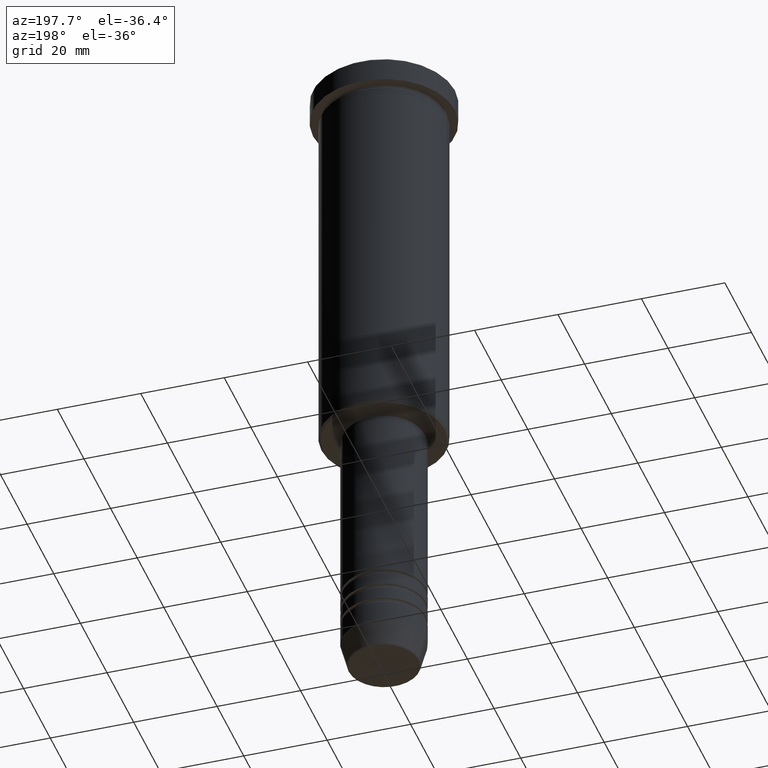
[diagram: clean part render]
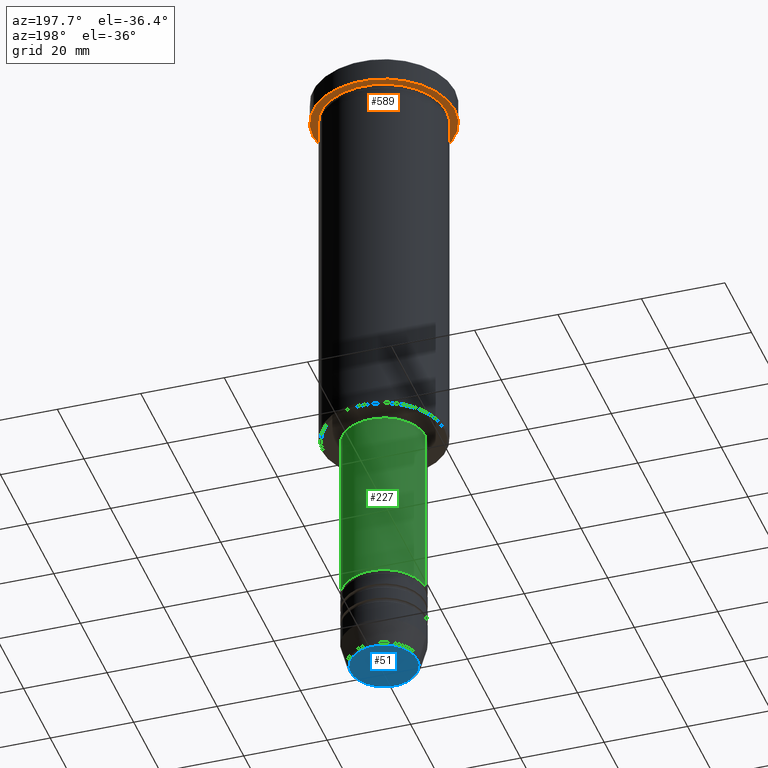
[diagram: same view with three faces highlighted in distinct colors, each labeled with its STEP entity id]
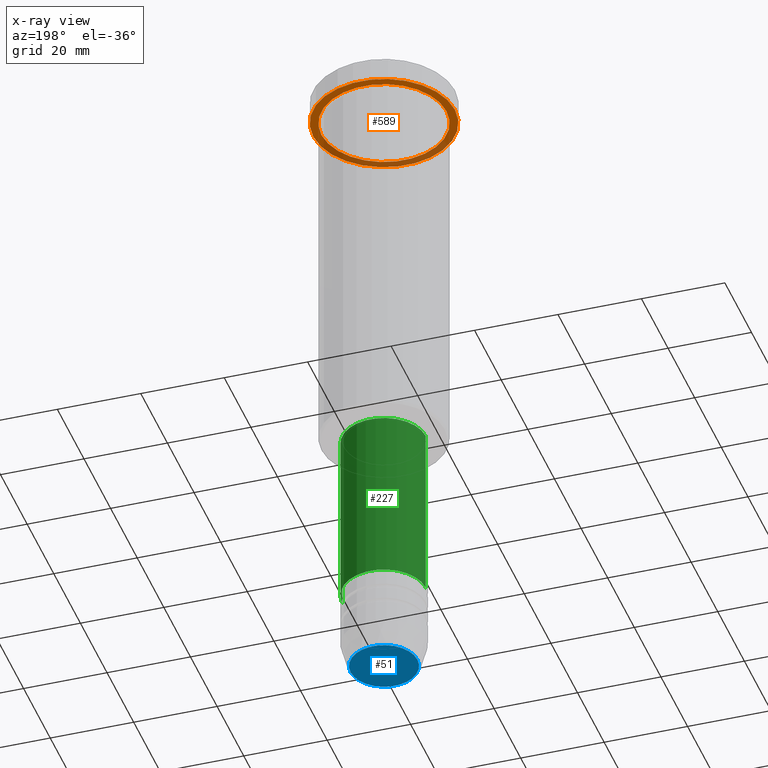
[diagram: x-ray of the same camera — body ghosted, the three highlighted faces saturated]
A machine part, auxiliary view with three faces highlighted in distinct colors.
The next image is the same camera in x-ray (body ghosted, the three faces saturated) — at least one of them is partly hidden behind the body in this view.
Their STEP definitions:

[orange] entity #589 — the highlighted planar face has unit normal (0, 0, -1).
#25 = CIRCLE ( 'NONE', #585, 15.00000000000000000 ) ;
#33 = VERTEX_POINT ( 'NONE', #1107 ) ;
#36 = DIRECTION ( 'NONE',  ( -1.000000000000000000, 0.000000000000000000, 0.000000000000000000 ) ) ;
#109 = DIRECTION ( 'NONE',  ( -0.000000000000000000, -0.000000000000000000, 1.000000000000000000 ) ) ;
#110 = EDGE_LOOP ( 'NONE', ( #245, #146 ) ) ;
#131 = CARTESIAN_POINT ( 'NONE',  ( 0.000000000000000000, 0.000000000000000000, -5.999999999999994671 ) ) ;
#138 = AXIS2_PLACEMENT_3D ( 'NONE', #131, #417, #36 ) ;
#146 = ORIENTED_EDGE ( 'NONE', *, *, #304, .F. ) ;
#177 = AXIS2_PLACEMENT_3D ( 'NONE', #750, #559, #556 ) ;
#245 = ORIENTED_EDGE ( 'NONE', *, *, #848, .F. ) ;
#256 = VERTEX_POINT ( 'NONE', #536 ) ;
#294 = AXIS2_PLACEMENT_3D ( 'NONE', #658, #383, #301 ) ;
#301 = DIRECTION ( 'NONE',  ( 1.000000000000000000, 0.000000000000000000, 0.000000000000000000 ) ) ;
#304 = EDGE_CURVE ( 'NONE', #33, #806, #564, .T. ) ;
#371 = CIRCLE ( 'NONE', #177, 17.00000000000000000 ) ;
#383 = DIRECTION ( 'NONE',  ( -0.000000000000000000, -0.000000000000000000, 1.000000000000000000 ) ) ;
#417 = DIRECTION ( 'NONE',  ( -0.000000000000000000, -0.000000000000000000, 1.000000000000000000 ) ) ;
#434 = EDGE_CURVE ( 'NONE', #256, #697, #25, .T. ) ;
#477 = DIRECTION ( 'NONE',  ( -1.000000000000000000, 0.000000000000000000, 0.000000000000000000 ) ) ;
#507 = AXIS2_PLACEMENT_3D ( 'NONE', #804, #1176, #622 ) ;
#528 = EDGE_CURVE ( 'NONE', #697, #256, #1095, .T. ) ;
#536 = CARTESIAN_POINT ( 'NONE',  ( -15.00000000000000000, 0.000000000000000000, -5.999999999999994671 ) ) ;
#556 = DIRECTION ( 'NONE',  ( 1.000000000000000000, 0.000000000000000000, 0.000000000000000000 ) ) ;
#559 = DIRECTION ( 'NONE',  ( -0.000000000000000000, -0.000000000000000000, 1.000000000000000000 ) ) ;
#564 = CIRCLE ( 'NONE', #294, 17.00000000000000000 ) ;
#585 = AXIS2_PLACEMENT_3D ( 'NONE', #668, #109, #477 ) ;
#586 = FACE_BOUND ( 'NONE', #820, .T. ) ;
#589 = ADVANCED_FACE ( 'NONE', ( #586, #1161 ), #1068, .T. ) ;
#622 = DIRECTION ( 'NONE',  ( -1.000000000000000000, 0.000000000000000000, -0.000000000000000000 ) ) ;
#658 = CARTESIAN_POINT ( 'NONE',  ( 0.000000000000000000, 0.000000000000000000, -5.999999999999994671 ) ) ;
#668 = CARTESIAN_POINT ( 'NONE',  ( 0.000000000000000000, 0.000000000000000000, -5.999999999999994671 ) ) ;
#697 = VERTEX_POINT ( 'NONE', #1072 ) ;
#750 = CARTESIAN_POINT ( 'NONE',  ( 0.000000000000000000, 0.000000000000000000, -5.999999999999994671 ) ) ;
#804 = CARTESIAN_POINT ( 'NONE',  ( 0.000000000000000000, 17.00000000000000000, -5.999999999999994671 ) ) ;
#806 = VERTEX_POINT ( 'NONE', #938 ) ;
#820 = EDGE_LOOP ( 'NONE', ( #1016, #825 ) ) ;
#825 = ORIENTED_EDGE ( 'NONE', *, *, #528, .T. ) ;
#848 = EDGE_CURVE ( 'NONE', #806, #33, #371, .T. ) ;
#938 = CARTESIAN_POINT ( 'NONE',  ( 17.00000000000000000, 0.000000000000000000, -5.999999999999994671 ) ) ;
#1016 = ORIENTED_EDGE ( 'NONE', *, *, #434, .T. ) ;
#1068 = PLANE ( 'NONE',  #507 ) ;
#1072 = CARTESIAN_POINT ( 'NONE',  ( 15.00000000000000000, 1.836970198721029589E-15, -5.999999999999994671 ) ) ;
#1095 = CIRCLE ( 'NONE', #138, 15.00000000000000000 ) ;
#1107 = CARTESIAN_POINT ( 'NONE',  ( -17.00000000000000000, 2.081899558550500280E-15, -5.999999999999994671 ) ) ;
#1161 = FACE_OUTER_BOUND ( 'NONE', #110, .T. ) ;
#1176 = DIRECTION ( 'NONE',  ( 0.000000000000000000, 0.000000000000000000, -1.000000000000000000 ) ) ;

[blue] entity #51 — the highlighted planar face has unit normal (0, -0, 1).
#12 = DIRECTION ( 'NONE',  ( 1.000000000000000000, 0.000000000000000000, 0.000000000000000000 ) ) ;
#19 = DIRECTION ( 'NONE',  ( 1.000000000000000000, 0.000000000000000000, 0.000000000000000000 ) ) ;
#51 = ADVANCED_FACE ( 'NONE', ( #661 ), #400, .F. ) ;
#127 = EDGE_CURVE ( 'NONE', #1120, #1124, #700, .T. ) ;
#150 = DIRECTION ( 'NONE',  ( 0.000000000000000000, 0.000000000000000000, -1.000000000000000000 ) ) ;
#211 = DIRECTION ( 'NONE',  ( 1.000000000000000000, 0.000000000000000000, 0.000000000000000000 ) ) ;
#325 = ORIENTED_EDGE ( 'NONE', *, *, #127, .T. ) ;
#339 = EDGE_CURVE ( 'NONE', #1124, #1120, #776, .T. ) ;
#400 = PLANE ( 'NONE',  #794 ) ;
#455 = DIRECTION ( 'NONE',  ( 0.000000000000000000, 0.000000000000000000, -1.000000000000000000 ) ) ;
#544 = CARTESIAN_POINT ( 'NONE',  ( 8.008641351423781529, 0.000000000000000000, -160.0000000000000284 ) ) ;
#661 = FACE_OUTER_BOUND ( 'NONE', #909, .T. ) ;
#700 = CIRCLE ( 'NONE', #913, 8.008641351423781529 ) ;
#776 = CIRCLE ( 'NONE', #970, 8.008641351423781529 ) ;
#793 = CARTESIAN_POINT ( 'NONE',  ( -8.008641351423781529, 1.010348648938493172E-15, -160.0000000000000284 ) ) ;
#794 = AXIS2_PLACEMENT_3D ( 'NONE', #1039, #1034, #211 ) ;
#900 = ORIENTED_EDGE ( 'NONE', *, *, #339, .T. ) ;
#909 = EDGE_LOOP ( 'NONE', ( #900, #325 ) ) ;
#913 = AXIS2_PLACEMENT_3D ( 'NONE', #1051, #150, #19 ) ;
#970 = AXIS2_PLACEMENT_3D ( 'NONE', #1094, #455, #12 ) ;
#1034 = DIRECTION ( 'NONE',  ( 0.000000000000000000, -0.000000000000000000, 1.000000000000000000 ) ) ;
#1039 = CARTESIAN_POINT ( 'NONE',  ( 0.000000000000000000, 0.000000000000000000, -160.0000000000000284 ) ) ;
#1051 = CARTESIAN_POINT ( 'NONE',  ( 0.000000000000000000, 0.000000000000000000, -160.0000000000000284 ) ) ;
#1094 = CARTESIAN_POINT ( 'NONE',  ( 0.000000000000000000, 0.000000000000000000, -160.0000000000000284 ) ) ;
#1120 = VERTEX_POINT ( 'NONE', #793 ) ;
#1124 = VERTEX_POINT ( 'NONE', #544 ) ;

[green] entity #227 — the highlighted cylindrical surface (partial cylindrical patch) has radius 10 mm, axis along (-0, -0, 1).
#55 = FACE_OUTER_BOUND ( 'NONE', #144, .T. ) ;
#68 = CARTESIAN_POINT ( 'NONE',  ( 0.000000000000000000, 0.000000000000000000, -139.9999999999999716 ) ) ;
#119 = LINE ( 'NONE', #768, #198 ) ;
#135 = LINE ( 'NONE', #974, #257 ) ;
#144 = EDGE_LOOP ( 'NONE', ( #688, #1055, #362, #599 ) ) ;
#198 = VECTOR ( 'NONE', #1142, 1000.000000000000000 ) ;
#227 = ADVANCED_FACE ( 'NONE', ( #55 ), #713, .T. ) ;
#240 = EDGE_CURVE ( 'NONE', #558, #810, #893, .T. ) ;
#253 = DIRECTION ( 'NONE',  ( -0.000000000000000000, -0.000000000000000000, 1.000000000000000000 ) ) ;
#257 = VECTOR ( 'NONE', #1057, 1000.000000000000000 ) ;
#313 = AXIS2_PLACEMENT_3D ( 'NONE', #68, #253, #709 ) ;
#360 = DIRECTION ( 'NONE',  ( -0.000000000000000000, -0.000000000000000000, 1.000000000000000000 ) ) ;
#362 = ORIENTED_EDGE ( 'NONE', *, *, #638, .F. ) ;
#447 = DIRECTION ( 'NONE',  ( 1.000000000000000000, 0.000000000000000000, 0.000000000000000000 ) ) ;
#476 = CARTESIAN_POINT ( 'NONE',  ( -10.00000000000000178, 1.224646799147353454E-15, -139.9999999999999716 ) ) ;
#494 = VERTEX_POINT ( 'NONE', #964 ) ;
#506 = AXIS2_PLACEMENT_3D ( 'NONE', #1177, #360, #903 ) ;
#514 = EDGE_CURVE ( 'NONE', #558, #549, #135, .T. ) ;
#539 = EDGE_CURVE ( 'NONE', #810, #494, #119, .T. ) ;
#549 = VERTEX_POINT ( 'NONE', #778 ) ;
#558 = VERTEX_POINT ( 'NONE', #957 ) ;
#599 = ORIENTED_EDGE ( 'NONE', *, *, #514, .F. ) ;
#638 = EDGE_CURVE ( 'NONE', #549, #494, #738, .T. ) ;
#688 = ORIENTED_EDGE ( 'NONE', *, *, #240, .T. ) ;
#709 = DIRECTION ( 'NONE',  ( 1.000000000000000000, 0.000000000000000000, 0.000000000000000000 ) ) ;
#713 = CYLINDRICAL_SURFACE ( 'NONE', #506, 10.00000000000000000 ) ;
#738 = CIRCLE ( 'NONE', #760, 9.999999999999998224 ) ;
#760 = AXIS2_PLACEMENT_3D ( 'NONE', #894, #808, #447 ) ;
#768 = CARTESIAN_POINT ( 'NONE',  ( -10.00000000000000000, 1.224646799147353256E-15, 0.000000000000000000 ) ) ;
#778 = CARTESIAN_POINT ( 'NONE',  ( 9.999999999999998224, 0.000000000000000000, -97.00000000000002842 ) ) ;
#808 = DIRECTION ( 'NONE',  ( -0.000000000000000000, -0.000000000000000000, 1.000000000000000000 ) ) ;
#810 = VERTEX_POINT ( 'NONE', #476 ) ;
#893 = CIRCLE ( 'NONE', #313, 10.00000000000000178 ) ;
#894 = CARTESIAN_POINT ( 'NONE',  ( 0.000000000000000000, 0.000000000000000000, -97.00000000000002842 ) ) ;
#903 = DIRECTION ( 'NONE',  ( 1.000000000000000000, 0.000000000000000000, 0.000000000000000000 ) ) ;
#957 = CARTESIAN_POINT ( 'NONE',  ( 10.00000000000000178, 0.000000000000000000, -139.9999999999999716 ) ) ;
#964 = CARTESIAN_POINT ( 'NONE',  ( -9.999999999999998224, 1.224646799147353256E-15, -97.00000000000002842 ) ) ;
#974 = CARTESIAN_POINT ( 'NONE',  ( 10.00000000000000000, 0.000000000000000000, 0.000000000000000000 ) ) ;
#1055 = ORIENTED_EDGE ( 'NONE', *, *, #539, .T. ) ;
#1057 = DIRECTION ( 'NONE',  ( -0.000000000000000000, -0.000000000000000000, 1.000000000000000000 ) ) ;
#1142 = DIRECTION ( 'NONE',  ( -0.000000000000000000, -0.000000000000000000, 1.000000000000000000 ) ) ;
#1177 = CARTESIAN_POINT ( 'NONE',  ( 0.000000000000000000, 0.000000000000000000, 0.000000000000000000 ) ) ;